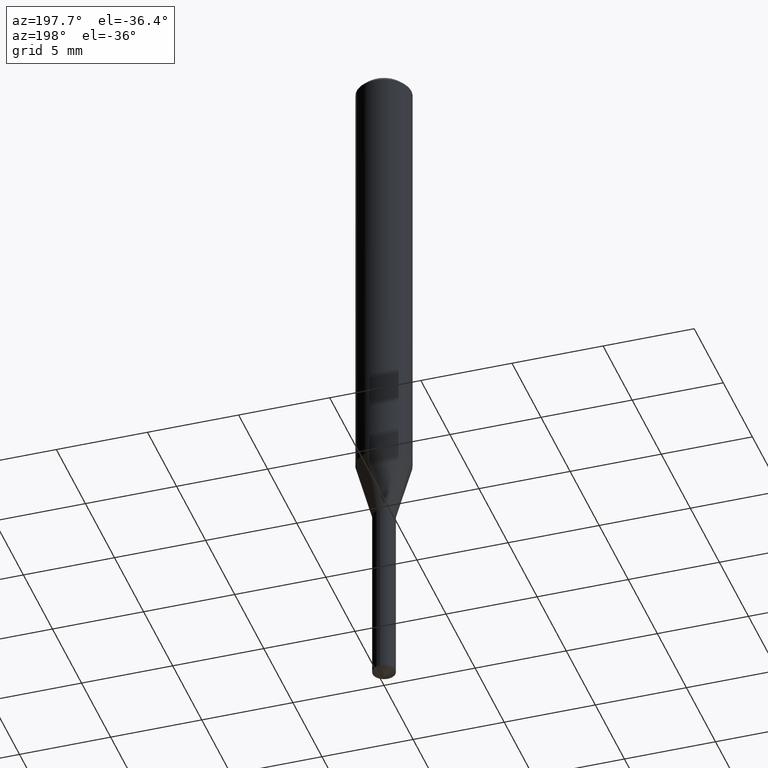
[diagram: clean part render]
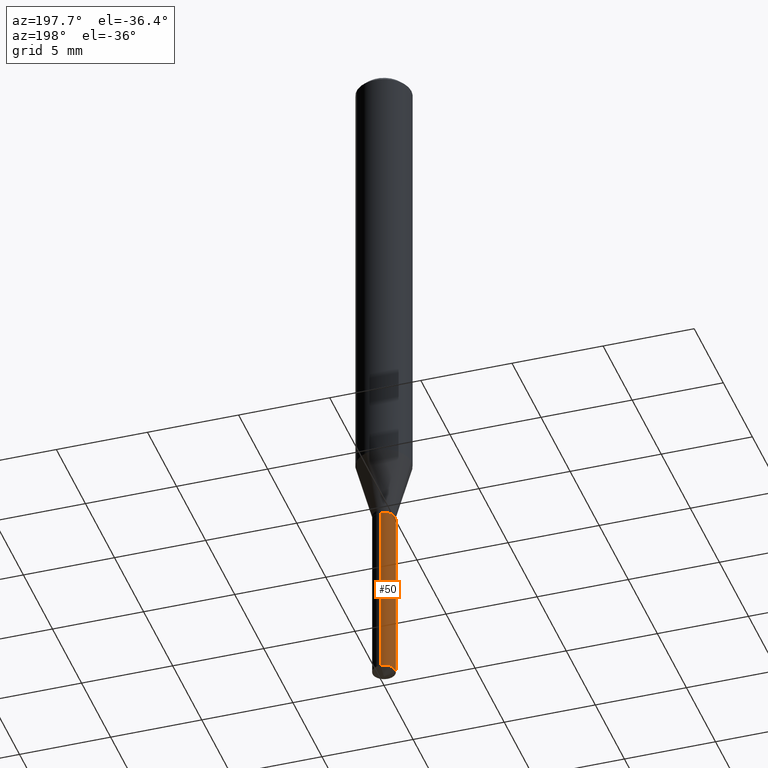
[diagram: same view with one face highlighted and labeled with its STEP entity id]
A machine part, auxiliary view. The second image highlights one B-rep face of the part: STEP entity #50.
In plain terms, the highlighted cylindrical surface (edge-blend (fillet) strip) has radius 0.6248 mm, axis along (-0, 0, 1).
Its self-contained STEP definition (entity closure, byte-faithful):
#1 = CARTESIAN_POINT ( 'NONE',  ( -1.717808818710458758E-16, -0.02460000000000518716, -1.484628831609386967 ) ) ;
#17 = AXIS2_PLACEMENT_3D ( 'NONE', #478, #169, #313 ) ;
#20 = CARTESIAN_POINT ( 'NONE',  ( 1.747935129970209604E-16, 0.02459999999999618048, -1.094500000000000028 ) ) ;
#33 = LINE ( 'NONE', #337, #436 ) ;
#38 = FACE_OUTER_BOUND ( 'NONE', #181, .T. ) ;
#43 = DIRECTION ( 'NONE',  ( -6.982962677686265922E-15, -1.000000000000000000, 5.552536572488340164E-15 ) ) ;
#50 = ADVANCED_FACE ( 'NONE', ( #38 ), #159, .T. ) ;
#51 = VERTEX_POINT ( 'NONE', #236 ) ;
#71 = VECTOR ( 'NONE', #410, 39.37007874015748143 ) ;
#107 = LINE ( 'NONE', #330, #71 ) ;
#126 = AXIS2_PLACEMENT_3D ( 'NONE', #277, #381, #156 ) ;
#152 = VERTEX_POINT ( 'NONE', #383 ) ;
#156 = DIRECTION ( 'NONE',  ( -6.982962677686265922E-15, -1.000000000000000000, 5.552536572488340164E-15 ) ) ;
#159 = CYLINDRICAL_SURFACE ( 'NONE', #126, 0.02460000000000000034 ) ;
#169 = DIRECTION ( 'NONE',  ( -2.445470214571802116E-29, 3.491479321953280158E-15, 1.000000000000000000 ) ) ;
#173 = CARTESIAN_POINT ( 'NONE',  ( 2.676565608369631794E-29, -3.821426325363822773E-15, -1.094499999999999806 ) ) ;
#181 = EDGE_LOOP ( 'NONE', ( #369, #408, #219, #365 ) ) ;
#207 = VERTEX_POINT ( 'NONE', #20 ) ;
#219 = ORIENTED_EDGE ( 'NONE', *, *, #342, .T. ) ;
#220 = DIRECTION ( 'NONE',  ( -2.445470214571802396E-29, 3.491479321953280158E-15, 1.000000000000000000 ) ) ;
#236 = CARTESIAN_POINT ( 'NONE',  ( 1.747935129970209604E-16, 0.02459999999999482739, -1.484628831609386967 ) ) ;
#248 = CIRCLE ( 'NONE', #17, 0.02460000000000000034 ) ;
#260 = EDGE_CURVE ( 'NONE', #207, #152, #345, .T. ) ;
#277 = CARTESIAN_POINT ( 'NONE',  ( 2.676565608369631794E-29, -3.821426325363822773E-15, -1.094499999999999806 ) ) ;
#297 = EDGE_CURVE ( 'NONE', #51, #357, #248, .T. ) ;
#313 = DIRECTION ( 'NONE',  ( -6.982962677686265922E-15, -1.000000000000000000, 0.000000000000000000 ) ) ;
#324 = DIRECTION ( 'NONE',  ( -2.445470214571802116E-29, 3.491479321953280158E-15, 1.000000000000000000 ) ) ;
#330 = CARTESIAN_POINT ( 'NONE',  ( -1.717808818710553915E-16, -0.02460000000000382020, -1.094499999999999806 ) ) ;
#337 = CARTESIAN_POINT ( 'NONE',  ( 1.747935129970113708E-16, 0.02459999999999618048, -1.094500000000000028 ) ) ;
#342 = EDGE_CURVE ( 'NONE', #357, #152, #107, .T. ) ;
#345 = CIRCLE ( 'NONE', #476, 0.02460000000000000034 ) ;
#357 = VERTEX_POINT ( 'NONE', #1 ) ;
#365 = ORIENTED_EDGE ( 'NONE', *, *, #260, .F. ) ;
#369 = ORIENTED_EDGE ( 'NONE', *, *, #421, .F. ) ;
#381 = DIRECTION ( 'NONE',  ( -2.445470214571802116E-29, 3.491479321953280158E-15, 1.000000000000000000 ) ) ;
#383 = CARTESIAN_POINT ( 'NONE',  ( -1.717808818710553915E-16, -0.02460000000000382020, -1.094499999999999806 ) ) ;
#408 = ORIENTED_EDGE ( 'NONE', *, *, #297, .T. ) ;
#410 = DIRECTION ( 'NONE',  ( -2.445470214571802396E-29, 3.491479321953280158E-15, 1.000000000000000000 ) ) ;
#421 = EDGE_CURVE ( 'NONE', #51, #207, #33, .T. ) ;
#436 = VECTOR ( 'NONE', #220, 39.37007874015748143 ) ;
#476 = AXIS2_PLACEMENT_3D ( 'NONE', #173, #324, #43 ) ;
#478 = CARTESIAN_POINT ( 'NONE',  ( 3.630614045916086260E-29, -5.183553073825791416E-15, -1.484628831609386967 ) ) ;